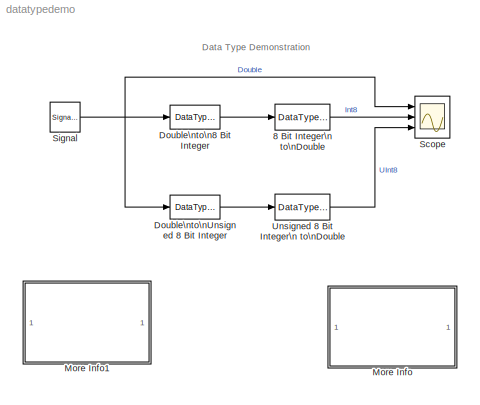
MODEL datatypedemo
KIND model
BLOCK [DataTypeConversion] 8 Bit Integer\n to\nDouble
  OutDataTypeMode = double
BLOCK [DataTypeConversion] Double\nto\n8 Bit Integer
  OutDataTypeMode = int8
BLOCK [DataTypeConversion] Double\nto\nUnsigned 8 Bit Integer
  OutDataTypeMode = uint8
BLOCK [SubSystem] More Info
  MaskDisplay = disp('Double click\\nhere for\\ninformation on\\nthis demonstration')
  MaskIconFrame = on
  MaskIconOpaque = on
  MaskIconRotate = none
  MaskIconUnits = autoscale
  MinAlgLoopOccurrences = off
  Ports = []
  PropExecContextAcrossSSBoundary = on
  RTWSystemCode = Auto
  TreatAsAtomicUnit = off
BLOCK [SubSystem] More Info1
  MaskDisplay = disp('Double click\\nhere for\\nSimulink Help')
  MaskIconFrame = on
  MaskIconOpaque = on
  MaskIconRotate = none
  MaskIconUnits = autoscale
  MinAlgLoopOccurrences = off
  OpenFcn = simcad(bdroot);
  Ports = []
  PropExecContextAcrossSSBoundary = on
  RTWSystemCode = Auto
  TreatAsAtomicUnit = off
BLOCK [Scope] Scope
  DataFormat = Array
  LimitDataPoints = off
  NumInputPorts = 3
  Ports = [3]
  StartFcn = open_system(gcbh)
  TimeRange = 4
  YMax = 150~150~150
  YMin = -150~-150~-150
BLOCK [SignalGenerator] Signal
  Amplitude = 150
  AttributesFormatString = Waveform: %<Waveform>\\nAmplitude: %<Amplitude>\\nFreq: %<Frequency> %<Units>
  Ports = [0, 1]
BLOCK [DataTypeConversion] Unsigned 8 Bit Integer\n to\nDouble
  OutDataTypeMode = double
ANNOTATION (root): Data Type Demonstration
ANNOTATION More Info: Data Type Demonstration
ANNOTATION More Info: This demonstration shows how to use data types in Simulink. For this simple\nexample, a sine wave with an amplitude of 150 is kept as a double, converted to\nan 8-bit integer and converted to an unsigned 8-bit integer. The resulting effects\nof this are shown on a scope. Notice that the signed integer is allowed to be\npositive and negative but gets saturated above 128. The unsigned integer is alw...<+51ch>
LINE 8 Bit Integer\n to\nDouble:1 -> Scope:2
LINE Double\nto\n8 Bit Integer:1 -> 8 Bit Integer\n to\nDouble:1
LINE Double\nto\nUnsigned 8 Bit Integer:1 -> Unsigned 8 Bit Integer\n to\nDouble:1
NET Signal:1 -> Double\nto\n8 Bit Integer:1, Double\nto\nUnsigned 8 Bit Integer:1, Scope:1
LINE Unsigned 8 Bit Integer\n to\nDouble:1 -> Scope:3
note: NET lines group one-source signal fan-out (src -> all destinations, sorted); 1:1 wires keep LINE
